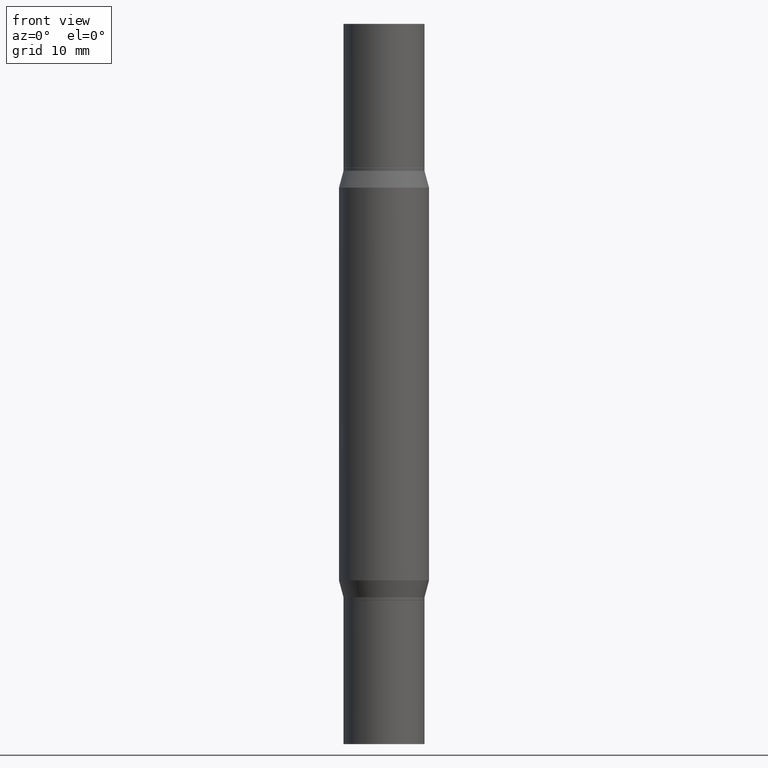
[diagram: clean part render]
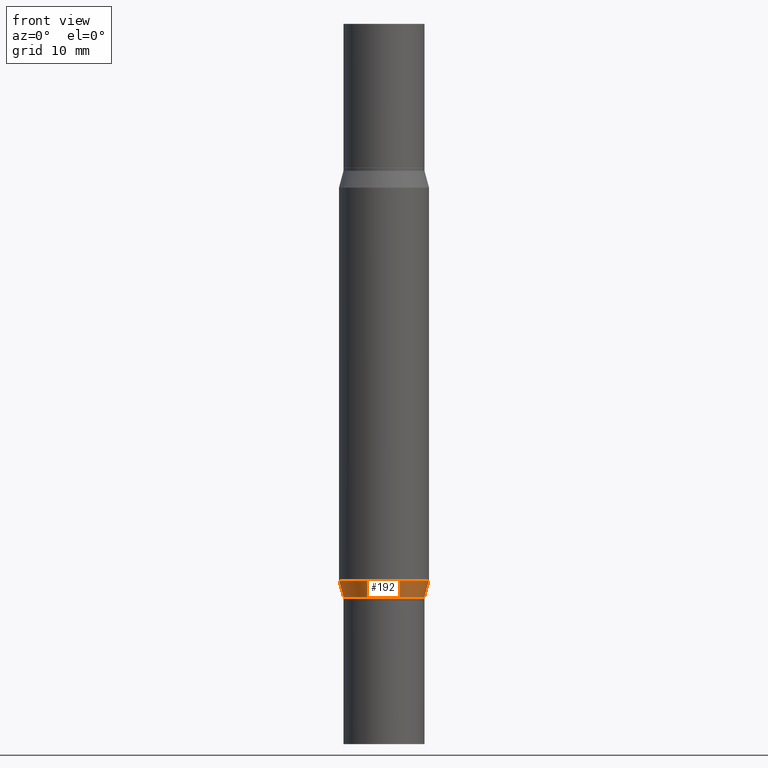
[diagram: same view with one face highlighted and labeled with its STEP entity id]
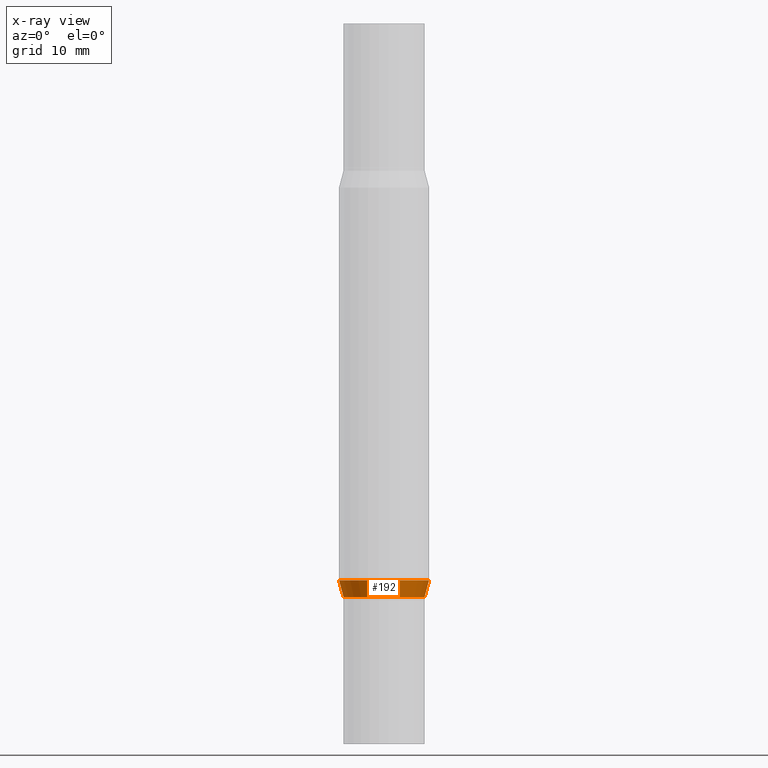
[diagram: x-ray of the same camera — body ghosted, the highlighted face saturated]
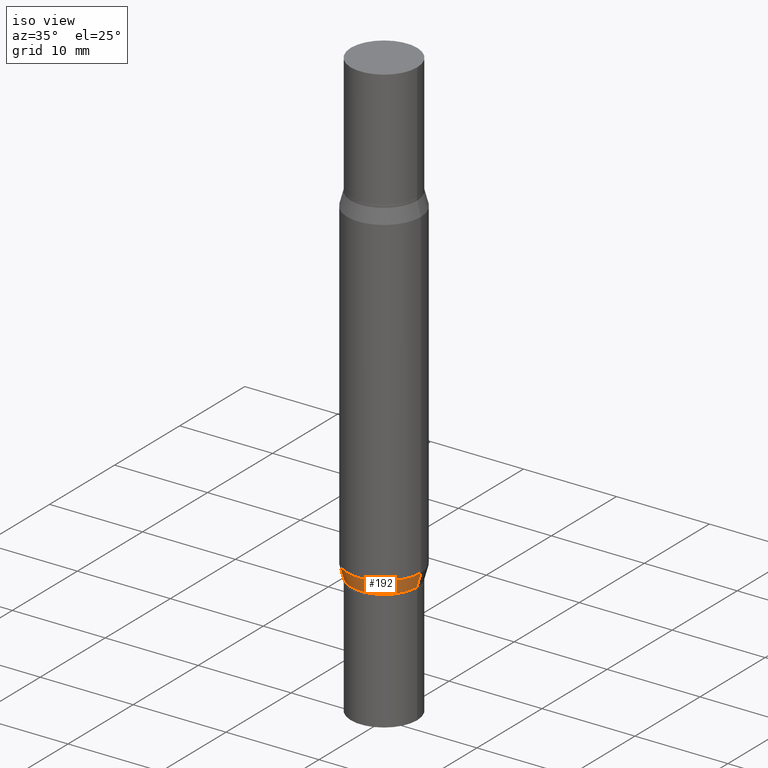
[diagram: same view with one face highlighted and labeled with its STEP entity id]
A machine part, front view. The second image highlights one B-rep face of the part: STEP entity #192.
The next image is the same camera in x-ray: the body ghosted, the highlighted face saturated — about 0% of this face is hidden behind the body in this view.
A second angle (iso view) of the same face is appended — the face is thin or edge-on in the first view.
In plain terms, the highlighted conical surface has half-angle 15 deg.
Its self-contained STEP definition (entity closure, byte-faithful):
#23 = CARTESIAN_POINT ( 'NONE',  ( 4.866482924308422209E-29, -6.948047864297860305E-15, -1.989999999999999991 ) ) ;
#39 = CARTESIAN_POINT ( 'NONE',  ( 0.1562500000000000000, -7.835210245695063494E-15, -1.931593404861546848 ) ) ;
#103 = AXIS2_PLACEMENT_3D ( 'NONE', #205, #519, #579 ) ;
#116 = AXIS2_PLACEMENT_3D ( 'NONE', #354, #213, #207 ) ;
#135 = AXIS2_PLACEMENT_3D ( 'NONE', #23, #847, #461 ) ;
#192 = ADVANCED_FACE ( 'NONE', ( #326 ), #333, .T. ) ;
#205 = CARTESIAN_POINT ( 'NONE',  ( 4.866482924308422209E-29, -6.948047864297860305E-15, -1.989999999999999991 ) ) ;
#207 = DIRECTION ( 'NONE',  ( 1.000000000000000000, -6.982962677686269077E-15, 0.000000000000000000 ) ) ;
#213 = DIRECTION ( 'NONE',  ( -2.445468806185136597E-29, 3.491481338843145583E-15, 1.000000000000000000 ) ) ;
#221 = VERTEX_POINT ( 'NONE', #624 ) ;
#235 = ORIENTED_EDGE ( 'NONE', *, *, #870, .T. ) ;
#244 = LINE ( 'NONE', #323, #353 ) ;
#323 = CARTESIAN_POINT ( 'NONE',  ( -0.1405999999999998917, -5.949024777819160607E-15, -1.989999999999999991 ) ) ;
#326 = FACE_OUTER_BOUND ( 'NONE', #463, .T. ) ;
#333 = CONICAL_SURFACE ( 'NONE', #135, 0.1405999999999998917, 0.2617993877991502960 ) ;
#353 = VECTOR ( 'NONE', #716, 39.37007874015748143 ) ;
#354 = CARTESIAN_POINT ( 'NONE',  ( 4.723651417821850369E-29, -6.744122327306583531E-15, -1.931593404861546848 ) ) ;
#415 = CARTESIAN_POINT ( 'NONE',  ( -0.1405999999999998917, -5.965609314178665286E-15, -1.989999999999999991 ) ) ;
#461 = DIRECTION ( 'NONE',  ( 1.000000000000000000, -6.982962677686263555E-15, 0.000000000000000000 ) ) ;
#463 = EDGE_LOOP ( 'NONE', ( #495, #235, #787, #717 ) ) ;
#495 = ORIENTED_EDGE ( 'NONE', *, *, #690, .F. ) ;
#519 = DIRECTION ( 'NONE',  ( -2.445468806185136597E-29, 3.491481338843145583E-15, 1.000000000000000000 ) ) ;
#530 = VERTEX_POINT ( 'NONE', #824 ) ;
#569 = EDGE_CURVE ( 'NONE', #221, #732, #856, .T. ) ;
#579 = DIRECTION ( 'NONE',  ( 1.000000000000000000, -6.982962677686263555E-15, 0.000000000000000000 ) ) ;
#624 = CARTESIAN_POINT ( 'NONE',  ( -0.1562500000000000000, -3.292398861402129087E-15, -1.931593404861546848 ) ) ;
#644 = VERTEX_POINT ( 'NONE', #415 ) ;
#690 = EDGE_CURVE ( 'NONE', #644, #221, #244, .T. ) ;
#701 = VECTOR ( 'NONE', #725, 39.37007874015748143 ) ;
#716 = DIRECTION ( 'NONE',  ( -0.2588190451025215721, 5.211531920934551831E-15, 0.9659258262890679791 ) ) ;
#717 = ORIENTED_EDGE ( 'NONE', *, *, #569, .F. ) ;
#720 = LINE ( 'NONE', #740, #701 ) ;
#725 = DIRECTION ( 'NONE',  ( 0.2588190451025215721, 1.565188264969619995E-15, 0.9659258262890679791 ) ) ;
#732 = VERTEX_POINT ( 'NONE', #39 ) ;
#740 = CARTESIAN_POINT ( 'NONE',  ( 0.1405999999999998917, -7.929852416780548622E-15, -1.989999999999999991 ) ) ;
#787 = ORIENTED_EDGE ( 'NONE', *, *, #919, .T. ) ;
#824 = CARTESIAN_POINT ( 'NONE',  ( 0.1405999999999998917, -7.929852416780548622E-15, -1.989999999999999991 ) ) ;
#847 = DIRECTION ( 'NONE',  ( -2.445468806185136597E-29, 3.491481338843145583E-15, 1.000000000000000000 ) ) ;
#856 = CIRCLE ( 'NONE', #116, 0.1562500000000000000 ) ;
#870 = EDGE_CURVE ( 'NONE', #644, #530, #920, .T. ) ;
#919 = EDGE_CURVE ( 'NONE', #530, #732, #720, .T. ) ;
#920 = CIRCLE ( 'NONE', #103, 0.1405999999999998917 ) ;